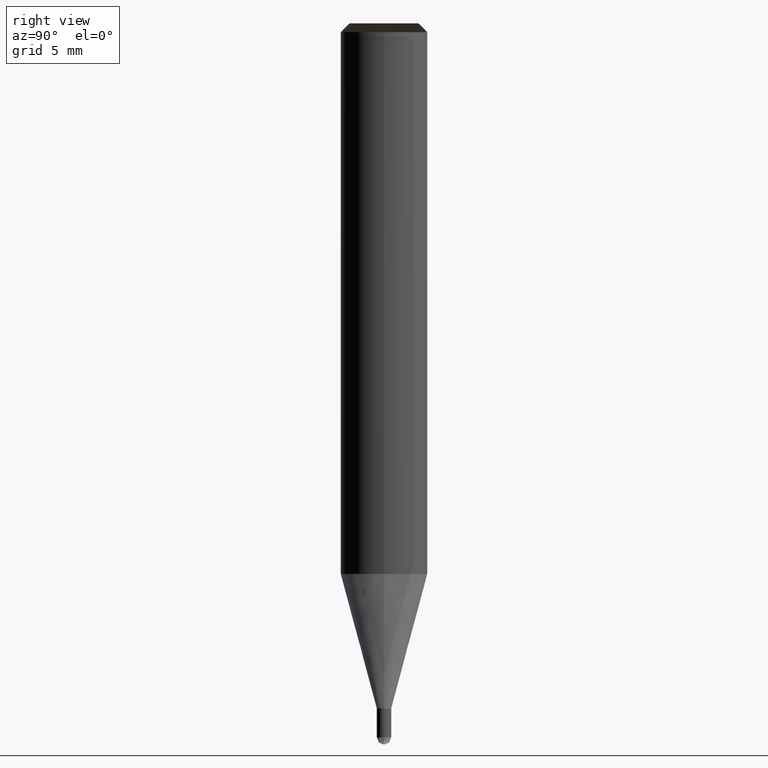
[diagram: clean part render]
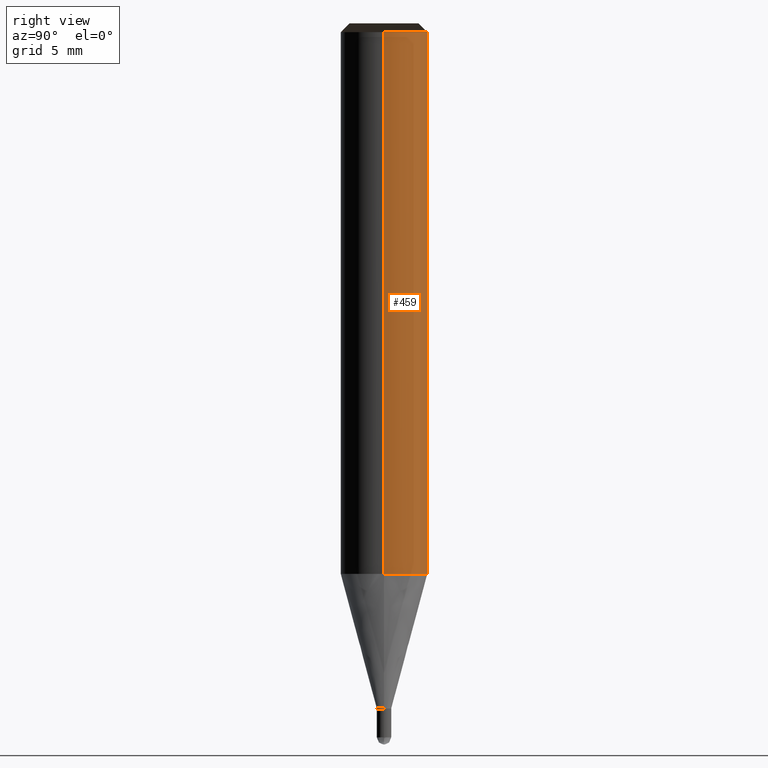
[diagram: same view with one face highlighted and labeled with its STEP entity id]
A machine part, right view. The second image highlights one B-rep face of the part: STEP entity #459.
In plain terms, the highlighted face is a freeform B-spline surface patch.
Its self-contained STEP definition (entity closure, byte-faithful):
#243=CARTESIAN_POINT('',(3.0,0.0,-0.0));
#244=CARTESIAN_POINT('',(3.0,3.0,-0.0));
#245=CARTESIAN_POINT('',(0.0,3.0,-0.0));
#246=CARTESIAN_POINT('',(-3.0,3.0,-0.0));
#247=CARTESIAN_POINT('',(-3.0,0.0,-0.0));
#248=CARTESIAN_POINT('',(3.0,0.0,37.569));
#249=CARTESIAN_POINT('',(3.0,3.0,37.569));
#250=CARTESIAN_POINT('',(0.0,3.0,37.569));
#251=CARTESIAN_POINT('',(-3.0,3.0,37.569));
#252=CARTESIAN_POINT('',(-3.0,0.0,37.569));
#440=(
BOUNDED_SURFACE()
B_SPLINE_SURFACE(1,2,(
(#243,#244,#245,#246,#247),
(#248,#249,#250,#251,#252)
), .UNSPECIFIED.,.F.,.F.,.F.)
B_SPLINE_SURFACE_WITH_KNOTS((2,2),(3,2,3),(
0.0,1.0),(
0.0,0.5,1.0), .UNSPECIFIED.)
GEOMETRIC_REPRESENTATION_ITEM()
RATIONAL_B_SPLINE_SURFACE(((1.0,0.707106781187,1.0,0.707106781187,1.0),
(1.0,0.707106781187,1.0,0.707106781187,1.0)
))
REPRESENTATION_ITEM('')
SURFACE()
);
#441=(
BOUNDED_CURVE()
B_SPLINE_CURVE(2,(#248,#249,#250,#251,#252),.UNSPECIFIED.,.F.,.F.)
B_SPLINE_CURVE_WITH_KNOTS((3,2,3),
(0.0,0.5,1.0),.UNSPECIFIED.)
CURVE()
GEOMETRIC_REPRESENTATION_ITEM()
RATIONAL_B_SPLINE_CURVE((1.0,0.707106781187,1.0,0.707106781187,1.0))
REPRESENTATION_ITEM('')
);
#442=(
BOUNDED_CURVE()
B_SPLINE_CURVE(1,(#252,#247),.UNSPECIFIED.,.F.,.F.)
B_SPLINE_CURVE_WITH_KNOTS((2,2),
(0.0,1.0),.UNSPECIFIED.)
CURVE()
GEOMETRIC_REPRESENTATION_ITEM()
RATIONAL_B_SPLINE_CURVE((1.0,1.0))
REPRESENTATION_ITEM('')
);
#443=(
BOUNDED_CURVE()
B_SPLINE_CURVE(2,(#247,#246,#245,#244,#243),.UNSPECIFIED.,.F.,.F.)
B_SPLINE_CURVE_WITH_KNOTS((3,2,3),
(0.0,0.5,1.0),.UNSPECIFIED.)
CURVE()
GEOMETRIC_REPRESENTATION_ITEM()
RATIONAL_B_SPLINE_CURVE((1.0,0.707106781187,1.0,0.707106781187,1.0))
REPRESENTATION_ITEM('')
);
#444=(
BOUNDED_CURVE()
B_SPLINE_CURVE(1,(#243,#248),.UNSPECIFIED.,.F.,.F.)
B_SPLINE_CURVE_WITH_KNOTS((2,2),
(0.0,1.0),.UNSPECIFIED.)
CURVE()
GEOMETRIC_REPRESENTATION_ITEM()
RATIONAL_B_SPLINE_CURVE((1.0,1.0))
REPRESENTATION_ITEM('')
);
#445=VERTEX_POINT('',#243);
#446=VERTEX_POINT('',#247);
#447=VERTEX_POINT('',#248);
#448=VERTEX_POINT('',#252);
#449=EDGE_CURVE('',#447,#448,#441,.T.);
#450=EDGE_CURVE('',#448,#446,#442,.T.);
#451=EDGE_CURVE('',#446,#445,#443,.T.);
#452=EDGE_CURVE('',#445,#447,#444,.T.);
#453=ORIENTED_EDGE('',*,*,#449,.T.);
#454=ORIENTED_EDGE('',*,*,#450,.T.);
#455=ORIENTED_EDGE('',*,*,#451,.T.);
#456=ORIENTED_EDGE('',*,*,#452,.T.);
#457=EDGE_LOOP('',(#453,#454,#455,#456));
#458=FACE_OUTER_BOUND('',#457,.T.);
#459=ADVANCED_FACE('',(#458),#440,.T.);